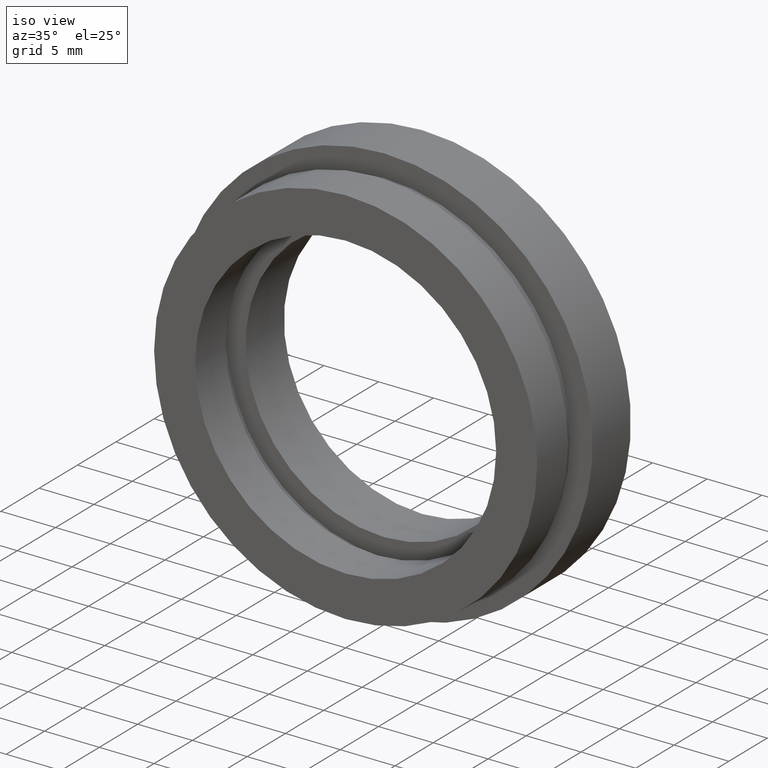
[diagram: clean part render]
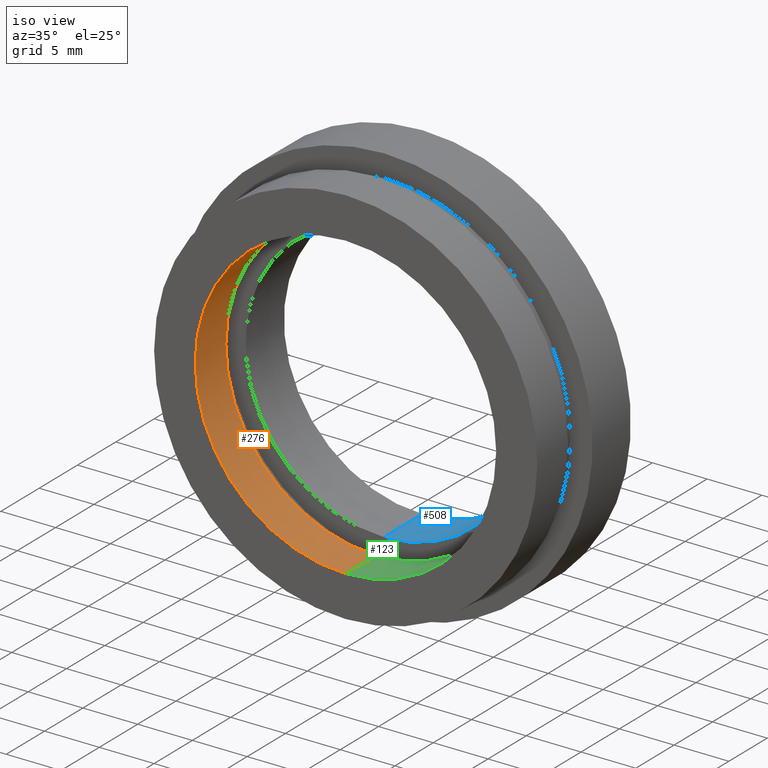
[diagram: same view with three faces highlighted in distinct colors, each labeled with its STEP entity id]
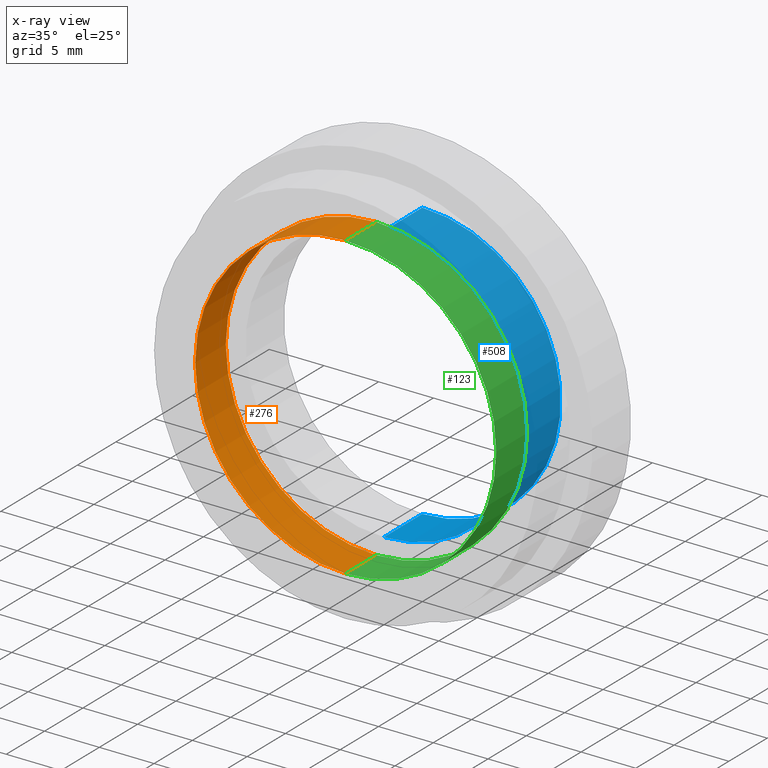
[diagram: x-ray of the same camera — body ghosted, the three highlighted faces saturated]
A machine part, iso view with three faces highlighted in distinct colors.
The next image is the same camera in x-ray (body ghosted, the three faces saturated) — at least one of them is partly hidden behind the body in this view.
Their STEP definitions:

[orange] entity #276 — the highlighted cylindrical surface (partial cylindrical patch) has radius 13.75 mm, axis along (-0, 1, -0).
#15 = CARTESIAN_POINT ( 'NONE',  ( 1.683889348827611000E-015, 13.74468085106383300, -13.75000000000000200 ) ) ;
#25 = DIRECTION ( 'NONE',  ( -0.0000000000000000000, 1.000000000000000000, -0.0000000000000000000 ) ) ;
#48 = EDGE_CURVE ( 'NONE', #343, #203, #419, .T. ) ;
#64 = AXIS2_PLACEMENT_3D ( 'NONE', #257, #537, #572 ) ;
#81 = CARTESIAN_POINT ( 'NONE',  ( 0.0000000000000000000, 13.74468085106383300, 13.75000000000000200 ) ) ;
#84 = EDGE_CURVE ( 'NONE', #343, #204, #140, .T. ) ;
#92 = CARTESIAN_POINT ( 'NONE',  ( 0.0000000000000000000, -1.734723475976807100E-015, 13.75000000000000000 ) ) ;
#103 = DIRECTION ( 'NONE',  ( 0.0000000000000000000, 0.0000000000000000000, 1.000000000000000000 ) ) ;
#128 = CIRCLE ( 'NONE', #64, 13.75000000000000200 ) ;
#134 = ORIENTED_EDGE ( 'NONE', *, *, #48, .F. ) ;
#137 = ORIENTED_EDGE ( 'NONE', *, *, #450, .T. ) ;
#140 = LINE ( 'NONE', #15, #184 ) ;
#181 = ORIENTED_EDGE ( 'NONE', *, *, #84, .T. ) ;
#184 = VECTOR ( 'NONE', #25, 1000.000000000000000 ) ;
#190 = DIRECTION ( 'NONE',  ( -0.0000000000000000000, 1.000000000000000000, -0.0000000000000000000 ) ) ;
#203 = VERTEX_POINT ( 'NONE', #92 ) ;
#204 = VERTEX_POINT ( 'NONE', #335 ) ;
#257 = CARTESIAN_POINT ( 'NONE',  ( 0.0000000000000000000, 4.000000000000000000, 0.0000000000000000000 ) ) ;
#276 = ADVANCED_FACE ( 'NONE', ( #570 ), #316, .F. ) ;
#294 = VECTOR ( 'NONE', #487, 1000.000000000000000 ) ;
#306 = LINE ( 'NONE', #81, #294 ) ;
#316 = CYLINDRICAL_SURFACE ( 'NONE', #342, 13.75000000000000200 ) ;
#335 = CARTESIAN_POINT ( 'NONE',  ( 1.683889348827611000E-015, 4.000000000000000000, -13.75000000000000200 ) ) ;
#342 = AXIS2_PLACEMENT_3D ( 'NONE', #520, #481, #103 ) ;
#343 = VERTEX_POINT ( 'NONE', #486 ) ;
#347 = EDGE_CURVE ( 'NONE', #203, #400, #306, .T. ) ;
#368 = EDGE_LOOP ( 'NONE', ( #134, #181, #137, #420 ) ) ;
#400 = VERTEX_POINT ( 'NONE', #559 ) ;
#419 = CIRCLE ( 'NONE', #527, 13.75000000000000000 ) ;
#420 = ORIENTED_EDGE ( 'NONE', *, *, #347, .F. ) ;
#450 = EDGE_CURVE ( 'NONE', #204, #400, #128, .T. ) ;
#481 = DIRECTION ( 'NONE',  ( -0.0000000000000000000, 1.000000000000000000, -0.0000000000000000000 ) ) ;
#486 = CARTESIAN_POINT ( 'NONE',  ( 1.683889348827610900E-015, -1.734723475976807100E-015, -13.75000000000000000 ) ) ;
#487 = DIRECTION ( 'NONE',  ( -0.0000000000000000000, 1.000000000000000000, -0.0000000000000000000 ) ) ;
#520 = CARTESIAN_POINT ( 'NONE',  ( 0.0000000000000000000, 13.74468085106383300, 0.0000000000000000000 ) ) ;
#527 = AXIS2_PLACEMENT_3D ( 'NONE', #573, #190, #562 ) ;
#537 = DIRECTION ( 'NONE',  ( -0.0000000000000000000, 1.000000000000000000, -0.0000000000000000000 ) ) ;
#559 = CARTESIAN_POINT ( 'NONE',  ( 0.0000000000000000000, 4.000000000000000000, 13.75000000000000200 ) ) ;
#562 = DIRECTION ( 'NONE',  ( 0.0000000000000000000, 0.0000000000000000000, 1.000000000000000000 ) ) ;
#570 = FACE_OUTER_BOUND ( 'NONE', #368, .T. ) ;
#572 = DIRECTION ( 'NONE',  ( 0.0000000000000000000, 0.0000000000000000000, 1.000000000000000000 ) ) ;
#573 = CARTESIAN_POINT ( 'NONE',  ( 0.0000000000000000000, -1.734723475976807100E-015, 0.0000000000000000000 ) ) ;

[blue] entity #508 — the highlighted cylindrical surface (partial cylindrical patch) has radius 12.645 mm, axis along (-0, 1, -0).
#8 = CARTESIAN_POINT ( 'NONE',  ( 0.0000000000000000000, 9.999999999999998200, 0.0000000000000000000 ) ) ;
#9 = VECTOR ( 'NONE', #187, 1000.000000000000000 ) ;
#27 = DIRECTION ( 'NONE',  ( -0.0000000000000000000, 1.000000000000000000, -0.0000000000000000000 ) ) ;
#58 = ORIENTED_EDGE ( 'NONE', *, *, #71, .F. ) ;
#71 = EDGE_CURVE ( 'NONE', #90, #609, #423, .T. ) ;
#85 = CIRCLE ( 'NONE', #349, 12.64500000000000100 ) ;
#90 = VERTEX_POINT ( 'NONE', #442 ) ;
#105 = DIRECTION ( 'NONE',  ( -0.0000000000000000000, 1.000000000000000000, -0.0000000000000000000 ) ) ;
#125 = VERTEX_POINT ( 'NONE', #563 ) ;
#131 = DIRECTION ( 'NONE',  ( -0.0000000000000000000, 1.000000000000000000, -0.0000000000000000000 ) ) ;
#170 = CYLINDRICAL_SURFACE ( 'NONE', #410, 12.64500000000000100 ) ;
#182 = EDGE_CURVE ( 'NONE', #125, #90, #85, .T. ) ;
#187 = DIRECTION ( 'NONE',  ( -0.0000000000000000000, 1.000000000000000000, -0.0000000000000000000 ) ) ;
#244 = CARTESIAN_POINT ( 'NONE',  ( 0.0000000000000000000, 5.000000000000000900, 0.0000000000000000000 ) ) ;
#260 = VERTEX_POINT ( 'NONE', #390 ) ;
#295 = DIRECTION ( 'NONE',  ( 0.0000000000000000000, 0.0000000000000000000, 1.000000000000000000 ) ) ;
#349 = AXIS2_PLACEMENT_3D ( 'NONE', #244, #552, #550 ) ;
#356 = ORIENTED_EDGE ( 'NONE', *, *, #182, .F. ) ;
#377 = CARTESIAN_POINT ( 'NONE',  ( 0.0000000000000000000, 13.74468085106383300, 12.64500000000000100 ) ) ;
#383 = CARTESIAN_POINT ( 'NONE',  ( 0.0000000000000000000, 13.74468085106383300, 0.0000000000000000000 ) ) ;
#390 = CARTESIAN_POINT ( 'NONE',  ( 0.0000000000000000000, 9.999999999999998200, 12.64500000000000100 ) ) ;
#410 = AXIS2_PLACEMENT_3D ( 'NONE', #383, #27, #295 ) ;
#423 = LINE ( 'NONE', #558, #9 ) ;
#442 = CARTESIAN_POINT ( 'NONE',  ( 1.548565877521828400E-015, 5.000000000000000900, -12.64500000000000100 ) ) ;
#472 = EDGE_CURVE ( 'NONE', #125, #260, #526, .T. ) ;
#479 = VECTOR ( 'NONE', #105, 1000.000000000000000 ) ;
#485 = DIRECTION ( 'NONE',  ( 0.0000000000000000000, 0.0000000000000000000, 1.000000000000000000 ) ) ;
#508 = ADVANCED_FACE ( 'NONE', ( #514 ), #170, .F. ) ;
#511 = EDGE_LOOP ( 'NONE', ( #58, #356, #623, #529 ) ) ;
#514 = FACE_OUTER_BOUND ( 'NONE', #511, .T. ) ;
#526 = LINE ( 'NONE', #377, #479 ) ;
#529 = ORIENTED_EDGE ( 'NONE', *, *, #589, .T. ) ;
#548 = AXIS2_PLACEMENT_3D ( 'NONE', #8, #131, #485 ) ;
#550 = DIRECTION ( 'NONE',  ( 0.0000000000000000000, 0.0000000000000000000, 1.000000000000000000 ) ) ;
#552 = DIRECTION ( 'NONE',  ( -0.0000000000000000000, 1.000000000000000000, -0.0000000000000000000 ) ) ;
#557 = CARTESIAN_POINT ( 'NONE',  ( 1.548565877521828400E-015, 9.999999999999998200, -12.64500000000000100 ) ) ;
#558 = CARTESIAN_POINT ( 'NONE',  ( 1.548565877521828400E-015, 13.74468085106383300, -12.64500000000000100 ) ) ;
#563 = CARTESIAN_POINT ( 'NONE',  ( 0.0000000000000000000, 5.000000000000000900, 12.64500000000000100 ) ) ;
#589 = EDGE_CURVE ( 'NONE', #260, #609, #606, .T. ) ;
#606 = CIRCLE ( 'NONE', #548, 12.64500000000000100 ) ;
#609 = VERTEX_POINT ( 'NONE', #557 ) ;
#623 = ORIENTED_EDGE ( 'NONE', *, *, #472, .T. ) ;

[green] entity #123 — the highlighted cylindrical surface (partial cylindrical patch) has radius 13.75 mm, axis along (-0, 1, -0).
#15 = CARTESIAN_POINT ( 'NONE',  ( 1.683889348827611000E-015, 13.74468085106383300, -13.75000000000000200 ) ) ;
#25 = DIRECTION ( 'NONE',  ( -0.0000000000000000000, 1.000000000000000000, -0.0000000000000000000 ) ) ;
#67 = CARTESIAN_POINT ( 'NONE',  ( 0.0000000000000000000, -1.734723475976807100E-015, 0.0000000000000000000 ) ) ;
#81 = CARTESIAN_POINT ( 'NONE',  ( 0.0000000000000000000, 13.74468085106383300, 13.75000000000000200 ) ) ;
#84 = EDGE_CURVE ( 'NONE', #343, #204, #140, .T. ) ;
#92 = CARTESIAN_POINT ( 'NONE',  ( 0.0000000000000000000, -1.734723475976807100E-015, 13.75000000000000000 ) ) ;
#99 = CYLINDRICAL_SURFACE ( 'NONE', #186, 13.75000000000000200 ) ;
#123 = ADVANCED_FACE ( 'NONE', ( #470 ), #99, .F. ) ;
#130 = DIRECTION ( 'NONE',  ( -0.0000000000000000000, 1.000000000000000000, -0.0000000000000000000 ) ) ;
#140 = LINE ( 'NONE', #15, #184 ) ;
#173 = ORIENTED_EDGE ( 'NONE', *, *, #283, .T. ) ;
#184 = VECTOR ( 'NONE', #25, 1000.000000000000000 ) ;
#186 = AXIS2_PLACEMENT_3D ( 'NONE', #290, #421, #553 ) ;
#203 = VERTEX_POINT ( 'NONE', #92 ) ;
#204 = VERTEX_POINT ( 'NONE', #335 ) ;
#283 = EDGE_CURVE ( 'NONE', #400, #204, #498, .T. ) ;
#290 = CARTESIAN_POINT ( 'NONE',  ( 0.0000000000000000000, 13.74468085106383300, 0.0000000000000000000 ) ) ;
#294 = VECTOR ( 'NONE', #487, 1000.000000000000000 ) ;
#304 = ORIENTED_EDGE ( 'NONE', *, *, #347, .T. ) ;
#306 = LINE ( 'NONE', #81, #294 ) ;
#327 = ORIENTED_EDGE ( 'NONE', *, *, #84, .F. ) ;
#332 = CIRCLE ( 'NONE', #458, 13.75000000000000000 ) ;
#334 = DIRECTION ( 'NONE',  ( 0.0000000000000000000, 0.0000000000000000000, 1.000000000000000000 ) ) ;
#335 = CARTESIAN_POINT ( 'NONE',  ( 1.683889348827611000E-015, 4.000000000000000000, -13.75000000000000200 ) ) ;
#343 = VERTEX_POINT ( 'NONE', #486 ) ;
#347 = EDGE_CURVE ( 'NONE', #203, #400, #306, .T. ) ;
#389 = CARTESIAN_POINT ( 'NONE',  ( 0.0000000000000000000, 4.000000000000000000, 0.0000000000000000000 ) ) ;
#397 = DIRECTION ( 'NONE',  ( 0.0000000000000000000, 0.0000000000000000000, 1.000000000000000000 ) ) ;
#400 = VERTEX_POINT ( 'NONE', #559 ) ;
#413 = EDGE_LOOP ( 'NONE', ( #327, #565, #304, #173 ) ) ;
#421 = DIRECTION ( 'NONE',  ( -0.0000000000000000000, 1.000000000000000000, -0.0000000000000000000 ) ) ;
#443 = AXIS2_PLACEMENT_3D ( 'NONE', #389, #130, #397 ) ;
#451 = DIRECTION ( 'NONE',  ( -0.0000000000000000000, 1.000000000000000000, -0.0000000000000000000 ) ) ;
#458 = AXIS2_PLACEMENT_3D ( 'NONE', #67, #451, #334 ) ;
#470 = FACE_OUTER_BOUND ( 'NONE', #413, .T. ) ;
#486 = CARTESIAN_POINT ( 'NONE',  ( 1.683889348827610900E-015, -1.734723475976807100E-015, -13.75000000000000000 ) ) ;
#487 = DIRECTION ( 'NONE',  ( -0.0000000000000000000, 1.000000000000000000, -0.0000000000000000000 ) ) ;
#498 = CIRCLE ( 'NONE', #443, 13.75000000000000200 ) ;
#553 = DIRECTION ( 'NONE',  ( 0.0000000000000000000, 0.0000000000000000000, 1.000000000000000000 ) ) ;
#559 = CARTESIAN_POINT ( 'NONE',  ( 0.0000000000000000000, 4.000000000000000000, 13.75000000000000200 ) ) ;
#565 = ORIENTED_EDGE ( 'NONE', *, *, #585, .F. ) ;
#585 = EDGE_CURVE ( 'NONE', #203, #343, #332, .T. ) ;